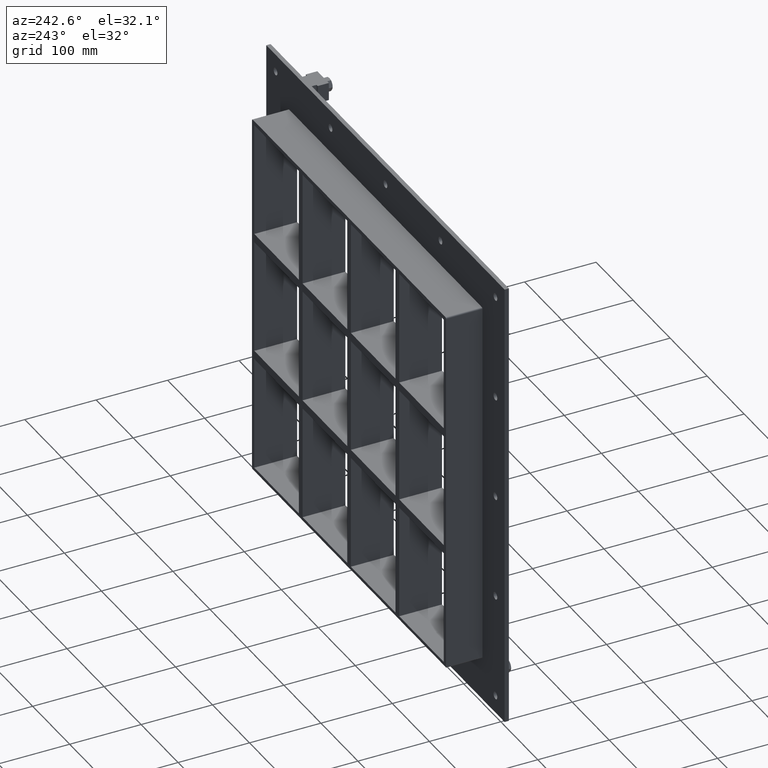
[diagram: clean part render]
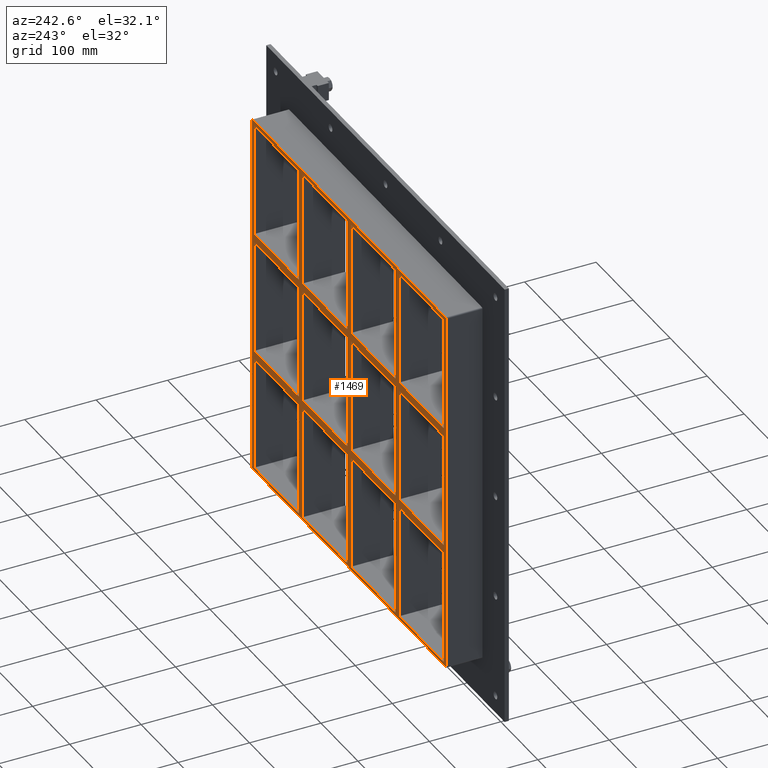
[diagram: same view with one face highlighted and labeled with its STEP entity id]
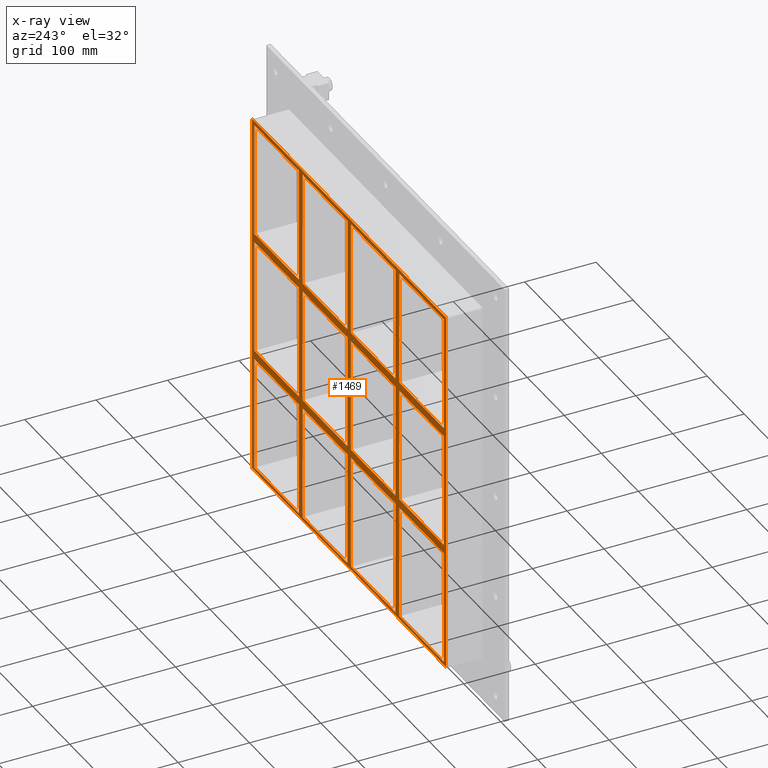
[diagram: x-ray of the same camera — body ghosted, the highlighted face saturated]
A machine part, auxiliary view. The second image highlights one B-rep face of the part: STEP entity #1469.
The next image is the same camera in x-ray: the body ghosted, the highlighted face saturated — about 0% of this face is hidden behind the body in this view.
In plain terms, the highlighted planar face has unit normal (0, 1, 0).
Its self-contained STEP definition (entity closure, byte-faithful):
#523=CARTESIAN_POINT('',(-135.50000000000031,57.0,79.749999999989114));
#524=VERTEX_POINT('',#523);
#539=CARTESIAN_POINT('',(-255.99999999999866,57.0,79.749999999989114));
#540=VERTEX_POINT('',#539);
#547=CARTESIAN_POINT('',(-135.50000000000034,57.0,79.7499999999891));
#548=DIRECTION('',(-1.0,0.0,0.0));
#549=VECTOR('',#548,120.49999999999829);
#550=LINE('',#547,#549);
#551=EDGE_CURVE('',#524,#540,#550,.T.);
#563=CARTESIAN_POINT('',(-5.000000000000284,57.0,79.749999999989086));
#564=VERTEX_POINT('',#563);
#579=CARTESIAN_POINT('',(-125.49999999999272,57.0,79.749999999989114));
#580=VERTEX_POINT('',#579);
#587=CARTESIAN_POINT('',(-5.000000000000284,57.0,79.749999999989086));
#588=DIRECTION('',(-1.0,0.0,0.0));
#589=VECTOR('',#588,120.49999999999244);
#590=LINE('',#587,#589);
#591=EDGE_CURVE('',#564,#580,#590,.T.);
#601=CARTESIAN_POINT('',(135.50000000000728,57.0,79.749999999989086));
#602=VERTEX_POINT('',#601);
#611=CARTESIAN_POINT('',(256.00000000000364,57.0,79.749999999989072));
#612=VERTEX_POINT('',#611);
#613=CARTESIAN_POINT('',(256.00000000000364,57.0,79.749999999989072));
#614=DIRECTION('',(-1.0,0.0,0.0));
#615=VECTOR('',#614,120.49999999999636);
#616=LINE('',#613,#615);
#617=EDGE_CURVE('',#612,#602,#616,.T.);
#643=CARTESIAN_POINT('',(125.4999999999997,57.0,79.749999999989086));
#644=VERTEX_POINT('',#643);
#659=CARTESIAN_POINT('',(5.000000000007283,57.0,79.749999999989086));
#660=VERTEX_POINT('',#659);
#667=CARTESIAN_POINT('',(125.49999999999972,57.0,79.749999999989086));
#668=DIRECTION('',(-1.0,0.0,0.0));
#669=VECTOR('',#668,120.49999999999244);
#670=LINE('',#667,#669);
#671=EDGE_CURVE('',#644,#660,#670,.T.);
#681=CARTESIAN_POINT('',(-135.50000000000031,57.0,91.749999999999801));
#682=VERTEX_POINT('',#681);
#691=CARTESIAN_POINT('',(-255.99999999999866,57.0,91.749999999999801));
#692=VERTEX_POINT('',#691);
#693=CARTESIAN_POINT('',(-255.99999999999866,57.0,91.749999999999801));
#694=DIRECTION('',(1.0,0.0,0.0));
#695=VECTOR('',#694,120.49999999999835);
#696=LINE('',#693,#695);
#697=EDGE_CURVE('',#692,#682,#696,.T.);
#723=CARTESIAN_POINT('',(135.50000000000728,57.0,91.749999999999801));
#724=VERTEX_POINT('',#723);
#739=CARTESIAN_POINT('',(255.99999999999952,57.0,91.749999999999801));
#740=VERTEX_POINT('',#739);
#747=CARTESIAN_POINT('',(135.5000000000073,57.0,91.749999999999801));
#748=DIRECTION('',(1.0,0.0,0.0));
#749=VECTOR('',#748,120.49999999999221);
#750=LINE('',#747,#749);
#751=EDGE_CURVE('',#724,#740,#750,.T.);
#761=CARTESIAN_POINT('',(-5.000000000000284,57.0,91.749999999999801));
#762=VERTEX_POINT('',#761);
#771=CARTESIAN_POINT('',(-125.49999999999272,57.0,91.749999999999801));
#772=VERTEX_POINT('',#771);
#773=CARTESIAN_POINT('',(-125.49999999999272,57.0,91.749999999999801));
#774=DIRECTION('',(1.0,0.0,0.0));
#775=VECTOR('',#774,120.49999999999244);
#776=LINE('',#773,#775);
#777=EDGE_CURVE('',#772,#762,#776,.T.);
#801=CARTESIAN_POINT('',(125.49999999999969,57.0,91.749999999999801));
#802=VERTEX_POINT('',#801);
#811=CARTESIAN_POINT('',(5.000000000007283,57.0,91.749999999999801));
#812=VERTEX_POINT('',#811);
#813=CARTESIAN_POINT('',(5.000000000007304,57.0,91.749999999999801));
#814=DIRECTION('',(1.0,0.0,0.0));
#815=VECTOR('',#814,120.49999999999238);
#816=LINE('',#813,#815);
#817=EDGE_CURVE('',#812,#802,#816,.T.);
#842=CARTESIAN_POINT('',(-256.0,57.0,251.25000000000003));
#843=VERTEX_POINT('',#842);
#844=CARTESIAN_POINT('',(-256.00000000000006,57.0,251.25000000000006));
#845=DIRECTION('',(0.0,0.0,-1.0));
#846=VECTOR('',#845,159.50000000000023);
#847=LINE('',#844,#846);
#848=EDGE_CURVE('',#843,#692,#847,.T.);
#873=CARTESIAN_POINT('',(255.99999999999952,57.0,-79.750000000000227));
#874=VERTEX_POINT('',#873);
#875=CARTESIAN_POINT('',(256.0,57.0,-79.750000000000213));
#876=DIRECTION('',(0.0,0.0,1.0));
#877=VECTOR('',#876,159.49999999998929);
#878=LINE('',#875,#877);
#879=EDGE_CURVE('',#874,#612,#878,.T.);
#912=CARTESIAN_POINT('',(256.0,57.0,251.25000000000003));
#913=VERTEX_POINT('',#912);
#920=CARTESIAN_POINT('',(256.0,57.0,91.749999999999787));
#921=DIRECTION('',(0.0,0.0,1.0));
#922=VECTOR('',#921,159.50000000000023);
#923=LINE('',#920,#922);
#924=EDGE_CURVE('',#740,#913,#923,.T.);
#943=CARTESIAN_POINT('',(125.49999999999969,57.0,251.25000000000003));
#944=VERTEX_POINT('',#943);
#951=CARTESIAN_POINT('',(125.49999999999972,57.0,91.749999999999801));
#952=DIRECTION('',(0.0,0.0,1.0));
#953=VECTOR('',#952,159.50000000000023);
#954=LINE('',#951,#953);
#955=EDGE_CURVE('',#802,#944,#954,.T.);
#966=CARTESIAN_POINT('',(135.50000000000728,57.0,251.25000000000003));
#967=VERTEX_POINT('',#966);
#968=CARTESIAN_POINT('',(135.50000000000728,57.0,251.25000000000003));
#969=DIRECTION('',(0.0,0.0,-1.0));
#970=VECTOR('',#969,159.50000000000023);
#971=LINE('',#968,#970);
#972=EDGE_CURVE('',#967,#724,#971,.T.);
#1005=CARTESIAN_POINT('',(-5.00000000000032,57.0,251.25000000000003));
#1006=VERTEX_POINT('',#1005);
#1013=CARTESIAN_POINT('',(-5.000000000000298,57.0,91.749999999999801));
#1014=DIRECTION('',(0.0,0.0,1.0));
#1015=VECTOR('',#1014,159.50000000000023);
#1016=LINE('',#1013,#1015);
#1017=EDGE_CURVE('',#762,#1006,#1016,.T.);
#1028=CARTESIAN_POINT('',(5.000000000007283,57.0,251.25000000000003));
#1029=VERTEX_POINT('',#1028);
#1030=CARTESIAN_POINT('',(5.000000000007283,57.0,251.25000000000003));
#1031=DIRECTION('',(0.0,0.0,-1.0));
#1032=VECTOR('',#1031,159.50000000000023);
#1033=LINE('',#1030,#1032);
#1034=EDGE_CURVE('',#1029,#812,#1033,.T.);
#1067=CARTESIAN_POINT('',(-135.50000000000034,57.0,251.25000000000003));
#1068=VERTEX_POINT('',#1067);
#1075=CARTESIAN_POINT('',(-135.50000000000031,57.0,91.749999999999801));
#1076=DIRECTION('',(0.0,0.0,1.0));
#1077=VECTOR('',#1076,159.50000000000023);
#1078=LINE('',#1075,#1077);
#1079=EDGE_CURVE('',#682,#1068,#1078,.T.);
#1090=CARTESIAN_POINT('',(-135.50000000000028,57.0,-79.750000000000227));
#1091=VERTEX_POINT('',#1090);
#1092=CARTESIAN_POINT('',(-135.50000000000028,57.0,-79.750000000000227));
#1093=DIRECTION('',(0.0,0.0,1.0));
#1094=VECTOR('',#1093,159.49999999998934);
#1095=LINE('',#1092,#1094);
#1096=EDGE_CURVE('',#1091,#524,#1095,.T.);
#1121=CARTESIAN_POINT('',(-125.49999999999272,57.0,251.25000000000003));
#1122=VERTEX_POINT('',#1121);
#1123=CARTESIAN_POINT('',(-125.49999999999272,57.0,251.25000000000003));
#1124=DIRECTION('',(0.0,0.0,-1.0));
#1125=VECTOR('',#1124,159.50000000000023);
#1126=LINE('',#1123,#1125);
#1127=EDGE_CURVE('',#1122,#772,#1126,.T.);
#1146=CARTESIAN_POINT('',(0.0,57.0,0.0));
#1147=DIRECTION('',(0.0,1.0,0.0));
#1148=DIRECTION('',(0.0,0.0,1.0));
#1149=AXIS2_PLACEMENT_3D('',#1146,#1147,#1148);
#1150=PLANE('',#1149);
#1151=CARTESIAN_POINT('',(-262.0,57.0,-255.25000000000003));
#1152=VERTEX_POINT('',#1151);
#1153=CARTESIAN_POINT('',(262.0,57.0,-255.25));
#1154=VERTEX_POINT('',#1153);
#1155=CARTESIAN_POINT('',(-262.00000000000006,57.0,-255.25000000000003));
#1156=DIRECTION('',(1.0,0.0,0.0));
#1157=VECTOR('',#1156,524.0);
#1158=LINE('',#1155,#1157);
#1159=EDGE_CURVE('',#1152,#1154,#1158,.T.);
#1160=ORIENTED_EDGE('',*,*,#1159,.F.);
#1161=CARTESIAN_POINT('',(-262.0,57.0,255.25));
#1162=VERTEX_POINT('',#1161);
#1163=CARTESIAN_POINT('',(-262.0,57.0,-255.25));
#1164=DIRECTION('',(0.0,0.0,1.0));
#1165=VECTOR('',#1164,510.5);
#1166=LINE('',#1163,#1165);
#1167=EDGE_CURVE('',#1152,#1162,#1166,.T.);
#1168=ORIENTED_EDGE('',*,*,#1167,.T.);
#1169=CARTESIAN_POINT('',(-260.0,57.0,257.25));
#1170=VERTEX_POINT('',#1169);
#1171=CARTESIAN_POINT('',(-260.0,57.0,255.25));
#1172=DIRECTION('',(0.0,-1.0,0.0));
#1173=DIRECTION('',(-0.707106781186548,0.0,0.707106781186548));
#1174=AXIS2_PLACEMENT_3D('',#1171,#1172,#1173);
#1175=CIRCLE('',#1174,2.0);
#1176=EDGE_CURVE('',#1170,#1162,#1175,.T.);
#1177=ORIENTED_EDGE('',*,*,#1176,.F.);
#1178=CARTESIAN_POINT('',(260.0,57.0,257.25));
#1179=VERTEX_POINT('',#1178);
#1180=CARTESIAN_POINT('',(-260.0,57.0,257.25));
#1181=DIRECTION('',(1.0,0.0,0.0));
#1182=VECTOR('',#1181,520.0);
#1183=LINE('',#1180,#1182);
#1184=EDGE_CURVE('',#1170,#1179,#1183,.T.);
#1185=ORIENTED_EDGE('',*,*,#1184,.T.);
#1186=CARTESIAN_POINT('',(262.0,57.0,255.25000000000003));
#1187=VERTEX_POINT('',#1186);
#1188=CARTESIAN_POINT('',(260.0,57.0,255.25000000000003));
#1189=DIRECTION('',(0.0,-1.0,0.0));
#1190=DIRECTION('',(0.70710678118656,0.0,0.707106781186535));
#1191=AXIS2_PLACEMENT_3D('',#1188,#1189,#1190);
#1192=CIRCLE('',#1191,2.0);
#1193=EDGE_CURVE('',#1187,#1179,#1192,.T.);
#1194=ORIENTED_EDGE('',*,*,#1193,.F.);
#1195=CARTESIAN_POINT('',(262.0,57.0,255.25));
#1196=DIRECTION('',(0.0,0.0,-1.0));
#1197=VECTOR('',#1196,510.5);
#1198=LINE('',#1195,#1197);
#1199=EDGE_CURVE('',#1187,#1154,#1198,.T.);
#1200=ORIENTED_EDGE('',*,*,#1199,.T.);
#1201=EDGE_LOOP('',(#1160,#1168,#1177,#1185,#1194,#1200));
#1202=FACE_OUTER_BOUND('',#1201,.T.);
#1203=CARTESIAN_POINT('',(-255.99999999999866,57.0,-79.750000000000227));
#1204=VERTEX_POINT('',#1203);
#1205=CARTESIAN_POINT('',(-256.00000000000006,57.0,79.749999999989129));
#1206=DIRECTION('',(0.0,0.0,-1.0));
#1207=VECTOR('',#1206,159.49999999998937);
#1208=LINE('',#1205,#1207);
#1209=EDGE_CURVE('',#540,#1204,#1208,.T.);
#1210=ORIENTED_EDGE('',*,*,#1209,.T.);
#1211=CARTESIAN_POINT('',(-255.99999999999866,57.0,-79.750000000000227));
#1212=DIRECTION('',(1.0,0.0,0.0));
#1213=VECTOR('',#1212,120.49999999999838);
#1214=LINE('',#1211,#1213);
#1215=EDGE_CURVE('',#1204,#1091,#1214,.T.);
#1216=ORIENTED_EDGE('',*,*,#1215,.T.);
#1217=ORIENTED_EDGE('',*,*,#1096,.T.);
#1218=ORIENTED_EDGE('',*,*,#551,.T.);
#1219=EDGE_LOOP('',(#1210,#1216,#1217,#1218));
#1220=FACE_BOUND('',#1219,.T.);
#1221=ORIENTED_EDGE('',*,*,#924,.T.);
#1222=CARTESIAN_POINT('',(256.0,57.0,251.25000000000003));
#1223=DIRECTION('',(-1.0,0.0,0.0));
#1224=VECTOR('',#1223,120.4999999999927);
#1225=LINE('',#1222,#1224);
#1226=EDGE_CURVE('',#913,#967,#1225,.T.);
#1227=ORIENTED_EDGE('',*,*,#1226,.T.);
#1228=ORIENTED_EDGE('',*,*,#972,.T.);
#1229=ORIENTED_EDGE('',*,*,#751,.T.);
#1230=EDGE_LOOP('',(#1221,#1227,#1228,#1229));
#1231=FACE_BOUND('',#1230,.T.);
#1232=ORIENTED_EDGE('',*,*,#955,.T.);
#1233=CARTESIAN_POINT('',(125.49999999999969,57.0,251.25000000000003));
#1234=DIRECTION('',(-1.0,0.0,0.0));
#1235=VECTOR('',#1234,120.49999999999241);
#1236=LINE('',#1233,#1235);
#1237=EDGE_CURVE('',#944,#1029,#1236,.T.);
#1238=ORIENTED_EDGE('',*,*,#1237,.T.);
#1239=ORIENTED_EDGE('',*,*,#1034,.T.);
#1240=ORIENTED_EDGE('',*,*,#817,.T.);
#1241=EDGE_LOOP('',(#1232,#1238,#1239,#1240));
#1242=FACE_BOUND('',#1241,.T.);
#1243=ORIENTED_EDGE('',*,*,#1017,.T.);
#1244=CARTESIAN_POINT('',(-5.000000000000327,57.0,251.25000000000003));
#1245=DIRECTION('',(-1.0,0.0,0.0));
#1246=VECTOR('',#1245,120.4999999999924);
#1247=LINE('',#1244,#1246);
#1248=EDGE_CURVE('',#1006,#1122,#1247,.T.);
#1249=ORIENTED_EDGE('',*,*,#1248,.T.);
#1250=ORIENTED_EDGE('',*,*,#1127,.T.);
#1251=ORIENTED_EDGE('',*,*,#777,.T.);
#1252=EDGE_LOOP('',(#1243,#1249,#1250,#1251));
#1253=FACE_BOUND('',#1252,.T.);
#1254=ORIENTED_EDGE('',*,*,#617,.T.);
#1255=CARTESIAN_POINT('',(135.50000000000728,57.0,-79.750000000000199));
#1256=VERTEX_POINT('',#1255);
#1257=CARTESIAN_POINT('',(135.50000000000728,57.0,79.749999999989058));
#1258=DIRECTION('',(0.0,0.0,-1.0));
#1259=VECTOR('',#1258,159.49999999998926);
#1260=LINE('',#1257,#1259);
#1261=EDGE_CURVE('',#602,#1256,#1260,.T.);
#1262=ORIENTED_EDGE('',*,*,#1261,.T.);
#1263=CARTESIAN_POINT('',(135.5000000000073,57.0,-79.750000000000227));
#1264=DIRECTION('',(1.0,0.0,0.0));
#1265=VECTOR('',#1264,120.49999999999221);
#1266=LINE('',#1263,#1265);
#1267=EDGE_CURVE('',#1256,#874,#1266,.T.);
#1268=ORIENTED_EDGE('',*,*,#1267,.T.);
#1269=ORIENTED_EDGE('',*,*,#879,.T.);
#1270=EDGE_LOOP('',(#1254,#1262,#1268,#1269));
#1271=FACE_BOUND('',#1270,.T.);
#1272=ORIENTED_EDGE('',*,*,#671,.T.);
#1273=CARTESIAN_POINT('',(5.000000000007283,57.0,-79.750000000000199));
#1274=VERTEX_POINT('',#1273);
#1275=CARTESIAN_POINT('',(5.000000000007283,57.0,79.749999999989114));
#1276=DIRECTION('',(0.0,0.0,-1.0));
#1277=VECTOR('',#1276,159.49999999998931);
#1278=LINE('',#1275,#1277);
#1279=EDGE_CURVE('',#660,#1274,#1278,.T.);
#1280=ORIENTED_EDGE('',*,*,#1279,.T.);
#1281=CARTESIAN_POINT('',(125.49999999999974,57.0,-79.750000000000227));
#1282=VERTEX_POINT('',#1281);
#1283=CARTESIAN_POINT('',(5.000000000007304,57.0,-79.750000000000227));
#1284=DIRECTION('',(1.0,0.0,0.0));
#1285=VECTOR('',#1284,120.49999999999244);
#1286=LINE('',#1283,#1285);
#1287=EDGE_CURVE('',#1274,#1282,#1286,.T.);
#1288=ORIENTED_EDGE('',*,*,#1287,.T.);
#1289=CARTESIAN_POINT('',(125.49999999999973,57.0,-79.750000000000227));
#1290=DIRECTION('',(0.0,0.0,1.0));
#1291=VECTOR('',#1290,159.49999999998934);
#1292=LINE('',#1289,#1291);
#1293=EDGE_CURVE('',#1282,#644,#1292,.T.);
#1294=ORIENTED_EDGE('',*,*,#1293,.T.);
#1295=EDGE_LOOP('',(#1272,#1280,#1288,#1294));
#1296=FACE_BOUND('',#1295,.T.);
#1297=ORIENTED_EDGE('',*,*,#591,.T.);
#1298=CARTESIAN_POINT('',(-125.49999999999272,57.0,-79.750000000000227));
#1299=VERTEX_POINT('',#1298);
#1300=CARTESIAN_POINT('',(-125.49999999999272,57.0,79.749999999989114));
#1301=DIRECTION('',(0.0,0.0,-1.0));
#1302=VECTOR('',#1301,159.49999999998931);
#1303=LINE('',#1300,#1302);
#1304=EDGE_CURVE('',#580,#1299,#1303,.T.);
#1305=ORIENTED_EDGE('',*,*,#1304,.T.);
#1306=CARTESIAN_POINT('',(-5.000000000000274,57.0,-79.750000000000227));
#1307=VERTEX_POINT('',#1306);
#1308=CARTESIAN_POINT('',(-125.49999999999272,57.0,-79.750000000000227));
#1309=DIRECTION('',(1.0,0.0,0.0));
#1310=VECTOR('',#1309,120.49999999999244);
#1311=LINE('',#1308,#1310);
#1312=EDGE_CURVE('',#1299,#1307,#1311,.T.);
#1313=ORIENTED_EDGE('',*,*,#1312,.T.);
#1314=CARTESIAN_POINT('',(-5.000000000000273,57.0,-79.750000000000227));
#1315=DIRECTION('',(0.0,0.0,1.0));
#1316=VECTOR('',#1315,159.49999999998934);
#1317=LINE('',#1314,#1316);
#1318=EDGE_CURVE('',#1307,#564,#1317,.T.);
#1319=ORIENTED_EDGE('',*,*,#1318,.T.);
#1320=EDGE_LOOP('',(#1297,#1305,#1313,#1319));
#1321=FACE_BOUND('',#1320,.T.);
#1322=CARTESIAN_POINT('',(-255.99999999999866,57.0,-91.750000000010914));
#1323=VERTEX_POINT('',#1322);
#1324=CARTESIAN_POINT('',(-256.0,57.0,-251.25000000000003));
#1325=VERTEX_POINT('',#1324);
#1326=CARTESIAN_POINT('',(-256.00000000000006,57.0,-91.750000000010914));
#1327=DIRECTION('',(0.0,0.0,-1.0));
#1328=VECTOR('',#1327,159.49999999998911);
#1329=LINE('',#1326,#1328);
#1330=EDGE_CURVE('',#1323,#1325,#1329,.T.);
#1331=ORIENTED_EDGE('',*,*,#1330,.T.);
#1332=CARTESIAN_POINT('',(-135.50000000000026,57.0,-251.25000000000003));
#1333=VERTEX_POINT('',#1332);
#1334=CARTESIAN_POINT('',(-256.00000000000006,57.0,-251.25000000000003));
#1335=DIRECTION('',(1.0,0.0,0.0));
#1336=VECTOR('',#1335,120.49999999999977);
#1337=LINE('',#1334,#1336);
#1338=EDGE_CURVE('',#1325,#1333,#1337,.T.);
#1339=ORIENTED_EDGE('',*,*,#1338,.T.);
#1340=CARTESIAN_POINT('',(-135.50000000000026,57.0,-91.750000000010914));
#1341=VERTEX_POINT('',#1340);
#1342=CARTESIAN_POINT('',(-135.50000000000026,57.0,-251.25000000000003));
#1343=DIRECTION('',(0.0,0.0,1.0));
#1344=VECTOR('',#1343,159.49999999998911);
#1345=LINE('',#1342,#1344);
#1346=EDGE_CURVE('',#1333,#1341,#1345,.T.);
#1347=ORIENTED_EDGE('',*,*,#1346,.T.);
#1348=CARTESIAN_POINT('',(-135.50000000000023,57.0,-91.750000000010914));
#1349=DIRECTION('',(-1.0,0.0,0.0));
#1350=VECTOR('',#1349,120.49999999999841);
#1351=LINE('',#1348,#1350);
#1352=EDGE_CURVE('',#1341,#1323,#1351,.T.);
#1353=ORIENTED_EDGE('',*,*,#1352,.T.);
#1354=EDGE_LOOP('',(#1331,#1339,#1347,#1353));
#1355=FACE_BOUND('',#1354,.T.);
#1356=CARTESIAN_POINT('',(-5.000000000000249,57.0,-251.25000000000003));
#1357=VERTEX_POINT('',#1356);
#1358=CARTESIAN_POINT('',(-5.000000000000271,57.0,-91.750000000010928));
#1359=VERTEX_POINT('',#1358);
#1360=CARTESIAN_POINT('',(-5.000000000000249,57.0,-251.25000000000003));
#1361=DIRECTION('',(0.0,0.0,1.0));
#1362=VECTOR('',#1361,159.49999999998911);
#1363=LINE('',#1360,#1362);
#1364=EDGE_CURVE('',#1357,#1359,#1363,.T.);
#1365=ORIENTED_EDGE('',*,*,#1364,.T.);
#1366=CARTESIAN_POINT('',(-125.49999999999272,57.0,-91.750000000010928));
#1367=VERTEX_POINT('',#1366);
#1368=CARTESIAN_POINT('',(-5.000000000000284,57.0,-91.750000000010928));
#1369=DIRECTION('',(-1.0,0.0,0.0));
#1370=VECTOR('',#1369,120.49999999999244);
#1371=LINE('',#1368,#1370);
#1372=EDGE_CURVE('',#1359,#1367,#1371,.T.);
#1373=ORIENTED_EDGE('',*,*,#1372,.T.);
#1374=CARTESIAN_POINT('',(-125.49999999999272,57.0,-251.24999999998178));
#1375=VERTEX_POINT('',#1374);
#1376=CARTESIAN_POINT('',(-125.49999999999272,57.0,-91.750000000010942));
#1377=DIRECTION('',(0.0,0.0,-1.0));
#1378=VECTOR('',#1377,159.49999999997084);
#1379=LINE('',#1376,#1378);
#1380=EDGE_CURVE('',#1367,#1375,#1379,.T.);
#1381=ORIENTED_EDGE('',*,*,#1380,.T.);
#1382=CARTESIAN_POINT('',(-125.49999999999272,57.0,-251.25000000000003));
#1383=DIRECTION('',(1.0,0.0,0.0));
#1384=VECTOR('',#1383,120.49999999999247);
#1385=LINE('',#1382,#1384);
#1386=EDGE_CURVE('',#1375,#1357,#1385,.T.);
#1387=ORIENTED_EDGE('',*,*,#1386,.T.);
#1388=EDGE_LOOP('',(#1365,#1373,#1381,#1387));
#1389=FACE_BOUND('',#1388,.T.);
#1390=CARTESIAN_POINT('',(125.49999999999976,57.0,-251.25000000000003));
#1391=VERTEX_POINT('',#1390);
#1392=CARTESIAN_POINT('',(125.49999999999974,57.0,-91.750000000010928));
#1393=VERTEX_POINT('',#1392);
#1394=CARTESIAN_POINT('',(125.49999999999976,57.0,-251.25000000000003));
#1395=DIRECTION('',(0.0,0.0,1.0));
#1396=VECTOR('',#1395,159.49999999998911);
#1397=LINE('',#1394,#1396);
#1398=EDGE_CURVE('',#1391,#1393,#1397,.T.);
#1399=ORIENTED_EDGE('',*,*,#1398,.T.);
#1400=CARTESIAN_POINT('',(5.000000000007283,57.0,-91.750000000010942));
#1401=VERTEX_POINT('',#1400);
#1402=CARTESIAN_POINT('',(125.49999999999974,57.0,-91.750000000010928));
#1403=DIRECTION('',(-1.0,0.0,0.0));
#1404=VECTOR('',#1403,120.49999999999247);
#1405=LINE('',#1402,#1404);
#1406=EDGE_CURVE('',#1393,#1401,#1405,.T.);
#1407=ORIENTED_EDGE('',*,*,#1406,.T.);
#1408=CARTESIAN_POINT('',(5.000000000007283,57.0,-251.24999999998178));
#1409=VERTEX_POINT('',#1408);
#1410=CARTESIAN_POINT('',(5.000000000007283,57.0,-91.750000000010942));
#1411=DIRECTION('',(0.0,0.0,-1.0));
#1412=VECTOR('',#1411,159.49999999997084);
#1413=LINE('',#1410,#1412);
#1414=EDGE_CURVE('',#1401,#1409,#1413,.T.);
#1415=ORIENTED_EDGE('',*,*,#1414,.T.);
#1416=CARTESIAN_POINT('',(5.000000000007276,57.0,-251.25000000000003));
#1417=DIRECTION('',(1.0,0.0,0.0));
#1418=VECTOR('',#1417,120.49999999999247);
#1419=LINE('',#1416,#1418);
#1420=EDGE_CURVE('',#1409,#1391,#1419,.T.);
#1421=ORIENTED_EDGE('',*,*,#1420,.T.);
#1422=EDGE_LOOP('',(#1399,#1407,#1415,#1421));
#1423=FACE_BOUND('',#1422,.T.);
#1424=ORIENTED_EDGE('',*,*,#697,.T.);
#1425=ORIENTED_EDGE('',*,*,#1079,.T.);
#1426=CARTESIAN_POINT('',(-135.50000000000034,57.0,251.25000000000003));
#1427=DIRECTION('',(-1.0,0.0,0.0));
#1428=VECTOR('',#1427,120.49999999999966);
#1429=LINE('',#1426,#1428);
#1430=EDGE_CURVE('',#1068,#843,#1429,.T.);
#1431=ORIENTED_EDGE('',*,*,#1430,.T.);
#1432=ORIENTED_EDGE('',*,*,#848,.T.);
#1433=EDGE_LOOP('',(#1424,#1425,#1431,#1432));
#1434=FACE_BOUND('',#1433,.T.);
#1435=CARTESIAN_POINT('',(135.50000000000728,57.0,-251.24999999998178));
#1436=VERTEX_POINT('',#1435);
#1437=CARTESIAN_POINT('',(256.0,57.0,-251.25000000000003));
#1438=VERTEX_POINT('',#1437);
#1439=CARTESIAN_POINT('',(135.50000000000728,57.0,-251.25000000000003));
#1440=DIRECTION('',(1.0,0.0,0.0));
#1441=VECTOR('',#1440,120.49999999999272);
#1442=LINE('',#1439,#1441);
#1443=EDGE_CURVE('',#1436,#1438,#1442,.T.);
#1444=ORIENTED_EDGE('',*,*,#1443,.T.);
#1445=CARTESIAN_POINT('',(256.00000000000364,57.0,-91.750000000010942));
#1446=VERTEX_POINT('',#1445);
#1447=CARTESIAN_POINT('',(256.0,57.0,-251.25000000000006));
#1448=DIRECTION('',(0.0,0.0,1.0));
#1449=VECTOR('',#1448,159.49999999998909);
#1450=LINE('',#1447,#1449);
#1451=EDGE_CURVE('',#1438,#1446,#1450,.T.);
#1452=ORIENTED_EDGE('',*,*,#1451,.T.);
#1453=CARTESIAN_POINT('',(135.50000000000728,57.0,-91.750000000010942));
#1454=VERTEX_POINT('',#1453);
#1455=CARTESIAN_POINT('',(256.00000000000364,57.0,-91.750000000010942));
#1456=DIRECTION('',(-1.0,0.0,0.0));
#1457=VECTOR('',#1456,120.49999999999636);
#1458=LINE('',#1455,#1457);
#1459=EDGE_CURVE('',#1446,#1454,#1458,.T.);
#1460=ORIENTED_EDGE('',*,*,#1459,.T.);
#1461=CARTESIAN_POINT('',(135.50000000000728,57.0,-91.750000000010942));
#1462=DIRECTION('',(0.0,0.0,-1.0));
#1463=VECTOR('',#1462,159.49999999997084);
#1464=LINE('',#1461,#1463);
#1465=EDGE_CURVE('',#1454,#1436,#1464,.T.);
#1466=ORIENTED_EDGE('',*,*,#1465,.T.);
#1467=EDGE_LOOP('',(#1444,#1452,#1460,#1466));
#1468=FACE_BOUND('',#1467,.T.);
#1469=ADVANCED_FACE('',(#1202,#1220,#1231,#1242,#1253,#1271,#1296,#1321,#1355,#1389,#1423,#1434,#1468),#1150,.T.);